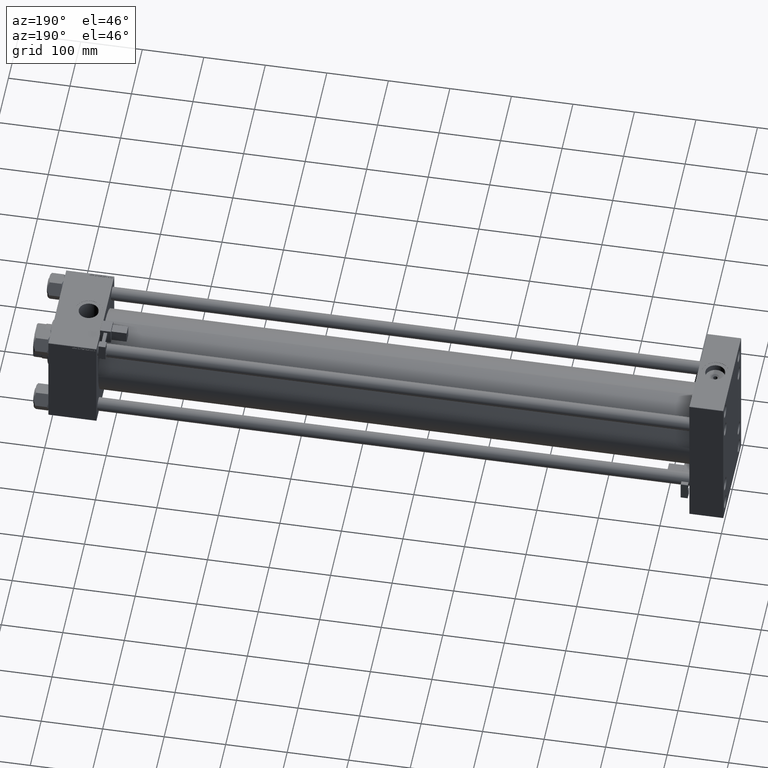
[diagram: clean part render]
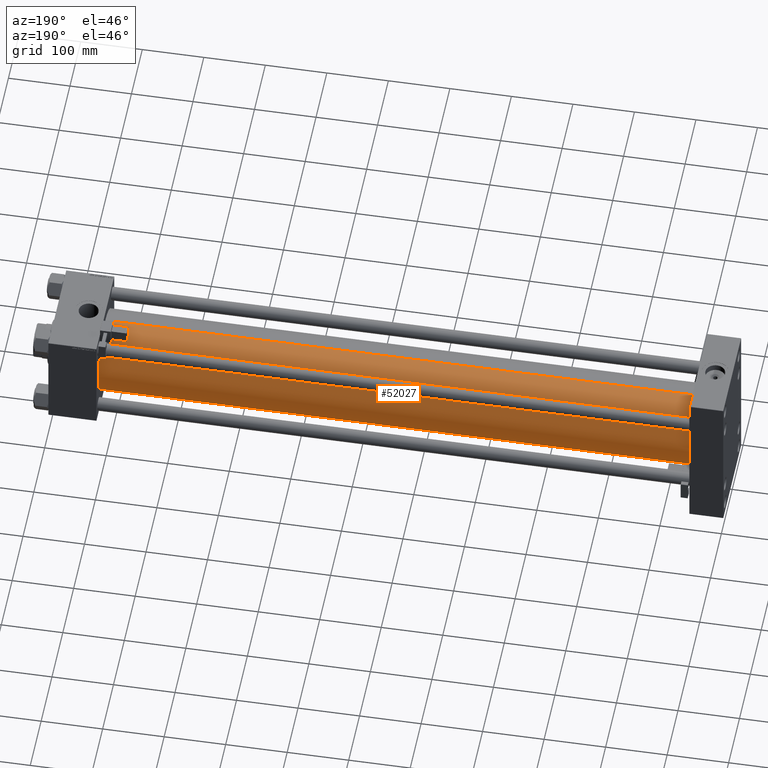
[diagram: same view with one face highlighted and labeled with its STEP entity id]
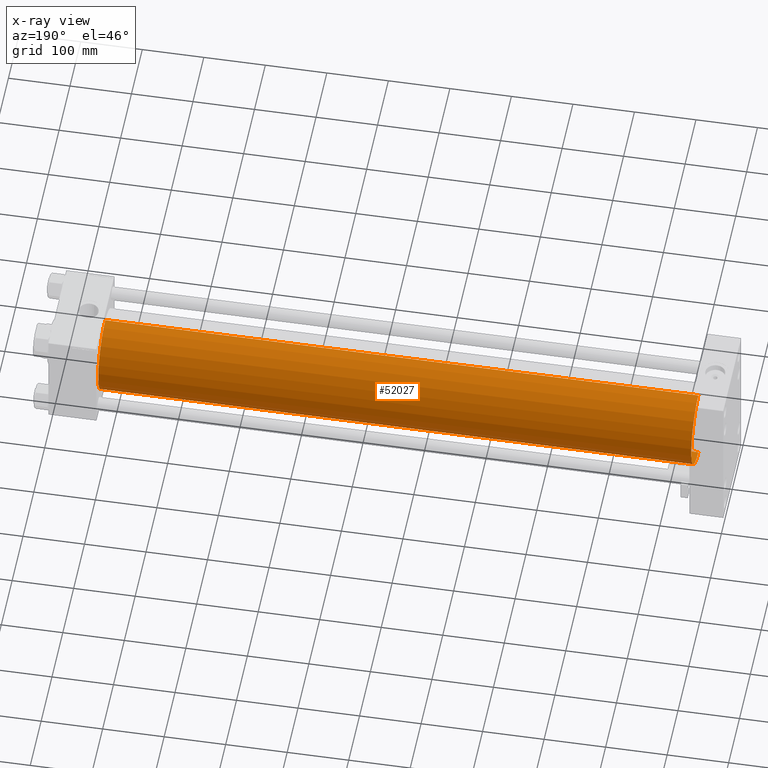
[diagram: x-ray of the same camera — body ghosted, the highlighted face saturated]
A machine part, auxiliary view. The second image highlights one B-rep face of the part: STEP entity #52027.
The next image is the same camera in x-ray: the body ghosted, the highlighted face saturated — about 0% of this face is hidden behind the body in this view.
In plain terms, the highlighted cylindrical surface (partial cylindrical patch) has radius 65.5 mm, axis along (-1, -0, -0).
Its self-contained STEP definition (entity closure, byte-faithful):
#283 = DIRECTION ( 'NONE',  ( 0.000000000000000000, 0.000000000000000000, 1.000000000000000000 ) ) ;
#3750 = FACE_OUTER_BOUND ( 'NONE', #14866, .T. ) ;
#4531 = DIRECTION ( 'NONE',  ( -1.000000000000000000, -0.000000000000000000, -0.000000000000000000 ) ) ;
#4819 = DIRECTION ( 'NONE',  ( 0.000000000000000000, 0.000000000000000000, -1.000000000000000000 ) ) ;
#6227 = CARTESIAN_POINT ( 'NONE',  ( 1018.999999999999886, 5.419351320449954973E-15, -65.50000000000001421 ) ) ;
#7373 = EDGE_CURVE ( 'NONE', #14612, #47002, #36753, .T. ) ;
#10503 = CARTESIAN_POINT ( 'NONE',  ( 1018.999999999999886, 5.419351320449954973E-15, -65.50000000000001421 ) ) ;
#10861 = CARTESIAN_POINT ( 'NONE',  ( 1018.999999999999886, -2.602085213965210642E-15, 65.50000000000001421 ) ) ;
#12052 = ORIENTED_EDGE ( 'NONE', *, *, #22521, .F. ) ;
#13088 = CARTESIAN_POINT ( 'NONE',  ( 1018.999999999999886, -2.602085213965210642E-15, 0.000000000000000000 ) ) ;
#13124 = DIRECTION ( 'NONE',  ( -1.000000000000000000, -0.000000000000000000, -0.000000000000000000 ) ) ;
#13282 = ORIENTED_EDGE ( 'NONE', *, *, #7373, .T. ) ;
#13759 = AXIS2_PLACEMENT_3D ( 'NONE', #41351, #42145, #42407 ) ;
#14612 = VERTEX_POINT ( 'NONE', #27919 ) ;
#14866 = EDGE_LOOP ( 'NONE', ( #12052, #19239, #13282, #45496 ) ) ;
#15005 = LINE ( 'NONE', #10503, #20559 ) ;
#19239 = ORIENTED_EDGE ( 'NONE', *, *, #51642, .T. ) ;
#20559 = VECTOR ( 'NONE', #51558, 1000.000000000000000 ) ;
#22521 = EDGE_CURVE ( 'NONE', #29544, #39930, #39516, .T. ) ;
#23566 = DIRECTION ( 'NONE',  ( 1.000000000000000000, 0.000000000000000000, 0.000000000000000000 ) ) ;
#26737 = AXIS2_PLACEMENT_3D ( 'NONE', #13088, #23566, #4819 ) ;
#27919 = CARTESIAN_POINT ( 'NONE',  ( 55.00000000000004974, 5.419351320449954973E-15, -65.50000000000001421 ) ) ;
#29544 = VERTEX_POINT ( 'NONE', #6227 ) ;
#36753 = CIRCLE ( 'NONE', #13759, 65.50000000000001421 ) ;
#36798 = CYLINDRICAL_SURFACE ( 'NONE', #51230, 65.50000000000001421 ) ;
#37505 = CARTESIAN_POINT ( 'NONE',  ( 55.00000000000004974, -2.602085213965210642E-15, 65.50000000000001421 ) ) ;
#37593 = VECTOR ( 'NONE', #13124, 1000.000000000000000 ) ;
#39516 = CIRCLE ( 'NONE', #26737, 65.50000000000001421 ) ;
#39930 = VERTEX_POINT ( 'NONE', #10861 ) ;
#41351 = CARTESIAN_POINT ( 'NONE',  ( 55.00000000000004974, -2.602085213965210642E-15, 0.000000000000000000 ) ) ;
#42145 = DIRECTION ( 'NONE',  ( 1.000000000000000000, -0.000000000000000000, 0.000000000000000000 ) ) ;
#42407 = DIRECTION ( 'NONE',  ( 0.000000000000000000, 0.000000000000000000, 1.000000000000000000 ) ) ;
#44277 = CARTESIAN_POINT ( 'NONE',  ( 1018.999999999999886, -2.602085213965210642E-15, 0.000000000000000000 ) ) ;
#45496 = ORIENTED_EDGE ( 'NONE', *, *, #51744, .F. ) ;
#46185 = CARTESIAN_POINT ( 'NONE',  ( 1018.999999999999886, -2.602085213965210642E-15, 65.50000000000001421 ) ) ;
#47002 = VERTEX_POINT ( 'NONE', #37505 ) ;
#49662 = LINE ( 'NONE', #46185, #37593 ) ;
#51230 = AXIS2_PLACEMENT_3D ( 'NONE', #44277, #4531, #283 ) ;
#51558 = DIRECTION ( 'NONE',  ( -1.000000000000000000, -0.000000000000000000, -0.000000000000000000 ) ) ;
#51642 = EDGE_CURVE ( 'NONE', #29544, #14612, #15005, .T. ) ;
#51744 = EDGE_CURVE ( 'NONE', #39930, #47002, #49662, .T. ) ;
#52027 = ADVANCED_FACE ( 'NONE', ( #3750 ), #36798, .T. ) ;